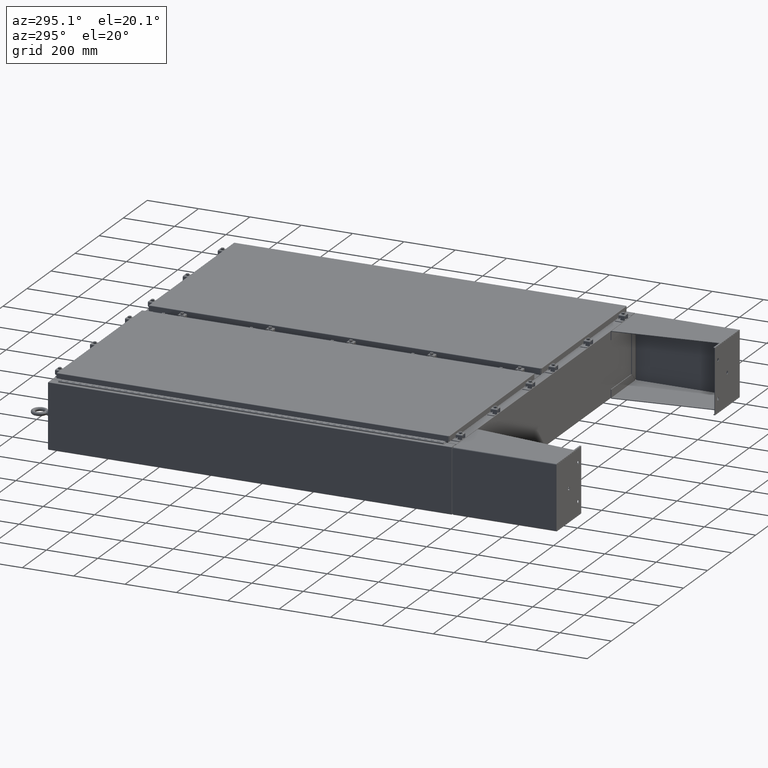
[diagram: clean part render]
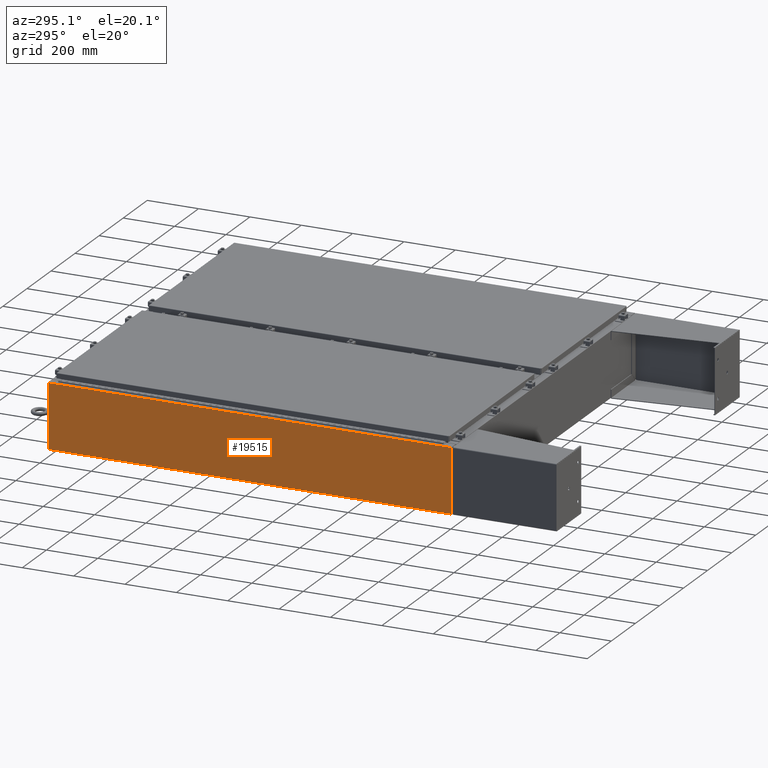
[diagram: same view with one face highlighted and labeled with its STEP entity id]
A machine part, auxiliary view. The second image highlights one B-rep face of the part: STEP entity #19515.
In plain terms, the highlighted planar face has unit normal (1, 0, 0).
Its self-contained STEP definition (entity closure, byte-faithful):
#4280 = EDGE_CURVE ( 'NONE', #17145, #35024, #34990, .T. ) ;
#6422 = PLANE ( 'NONE',  #25797 ) ;
#7564 = LINE ( 'NONE', #62840, #18434 ) ;
#11842 = DIRECTION ( 'NONE',  ( 1.000000000000000000, 0.0000000000000000000, 3.549799435455969400E-015 ) ) ;
#11944 = ORIENTED_EDGE ( 'NONE', *, *, #4280, .T. ) ;
#13086 = CARTESIAN_POINT ( 'NONE',  ( -30.00000000000001100, -30.92530000000000400, -9.303247015952738300E-014 ) ) ;
#14271 = EDGE_CURVE ( 'NONE', #25910, #17145, #66339, .T. ) ;
#16863 = CARTESIAN_POINT ( 'NONE',  ( -30.00000000000005300, -30.92530000000000400, 9.837599999999998300 ) ) ;
#17145 = VERTEX_POINT ( 'NONE', #47763 ) ;
#18434 = VECTOR ( 'NONE', #52017, 39.37007874015748100 ) ;
#19515 = ADVANCED_FACE ( 'NONE', ( #50229 ), #6422, .F. ) ;
#19611 = VECTOR ( 'NONE', #49063, 39.37007874015748100 ) ;
#22468 = CARTESIAN_POINT ( 'NONE',  ( -30.00000000000001100, 30.92529999999999300, -1.067547967196907000E-013 ) ) ;
#25797 = AXIS2_PLACEMENT_3D ( 'NONE', #43807, #11842, #49429 ) ;
#25910 = VERTEX_POINT ( 'NONE', #68391 ) ;
#27258 = CARTESIAN_POINT ( 'NONE',  ( -30.00000000000001100, -30.92530000000000400, 0.01299999999999766100 ) ) ;
#27914 = DIRECTION ( 'NONE',  ( 3.549799435455969400E-015, 0.0000000000000000000, -1.000000000000000000 ) ) ;
#28773 = EDGE_LOOP ( 'NONE', ( #58921, #11944, #53024, #54827 ) ) ;
#31617 = VECTOR ( 'NONE', #27914, 39.37007874015748100 ) ;
#34723 = DIRECTION ( 'NONE',  ( -3.549799435455969400E-015, 4.437249294319962300E-016, 1.000000000000000000 ) ) ;
#34990 = LINE ( 'NONE', #22468, #31617 ) ;
#35024 = VERTEX_POINT ( 'NONE', #51678 ) ;
#43807 = CARTESIAN_POINT ( 'NONE',  ( -30.00000000000001100, 0.0000000000000000000, -1.067547967196907000E-013 ) ) ;
#47763 = CARTESIAN_POINT ( 'NONE',  ( -30.00000000000004600, 30.92529999999999300, 9.837599999999998300 ) ) ;
#48370 = LINE ( 'NONE', #13086, #50073 ) ;
#49063 = DIRECTION ( 'NONE',  ( 0.0000000000000000000, 1.000000000000000000, 0.0000000000000000000 ) ) ;
#49429 = DIRECTION ( 'NONE',  ( 3.549799435455969400E-015, 0.0000000000000000000, -1.000000000000000000 ) ) ;
#50073 = VECTOR ( 'NONE', #34723, 39.37007874015748100 ) ;
#50229 = FACE_OUTER_BOUND ( 'NONE', #28773, .T. ) ;
#51678 = CARTESIAN_POINT ( 'NONE',  ( -30.00000000000001100, 30.92529999999999300, 0.01299999999999765100 ) ) ;
#52017 = DIRECTION ( 'NONE',  ( -0.0000000000000000000, 1.000000000000000000, -0.0000000000000000000 ) ) ;
#53024 = ORIENTED_EDGE ( 'NONE', *, *, #63370, .F. ) ;
#54827 = ORIENTED_EDGE ( 'NONE', *, *, #68634, .T. ) ;
#58921 = ORIENTED_EDGE ( 'NONE', *, *, #14271, .T. ) ;
#60212 = VERTEX_POINT ( 'NONE', #27258 ) ;
#62840 = CARTESIAN_POINT ( 'NONE',  ( -30.00000000000001100, 30.92529999999999300, 0.01299999999999766100 ) ) ;
#63370 = EDGE_CURVE ( 'NONE', #60212, #35024, #7564, .T. ) ;
#66339 = LINE ( 'NONE', #16863, #19611 ) ;
#68391 = CARTESIAN_POINT ( 'NONE',  ( -30.00000000000005300, -30.92530000000000400, 9.837599999999998300 ) ) ;
#68634 = EDGE_CURVE ( 'NONE', #60212, #25910, #48370, .T. ) ;